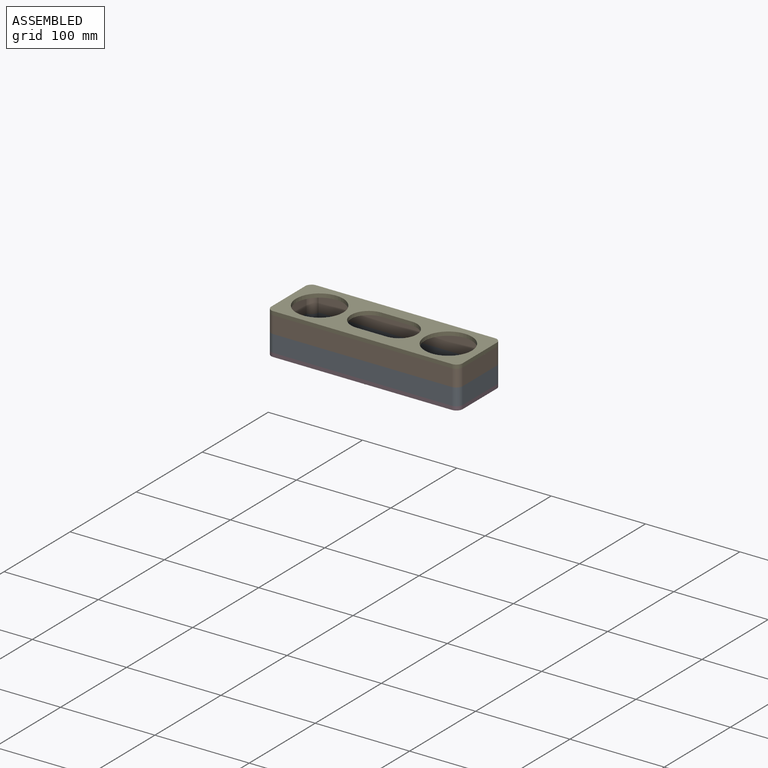
[diagram: assembled view]
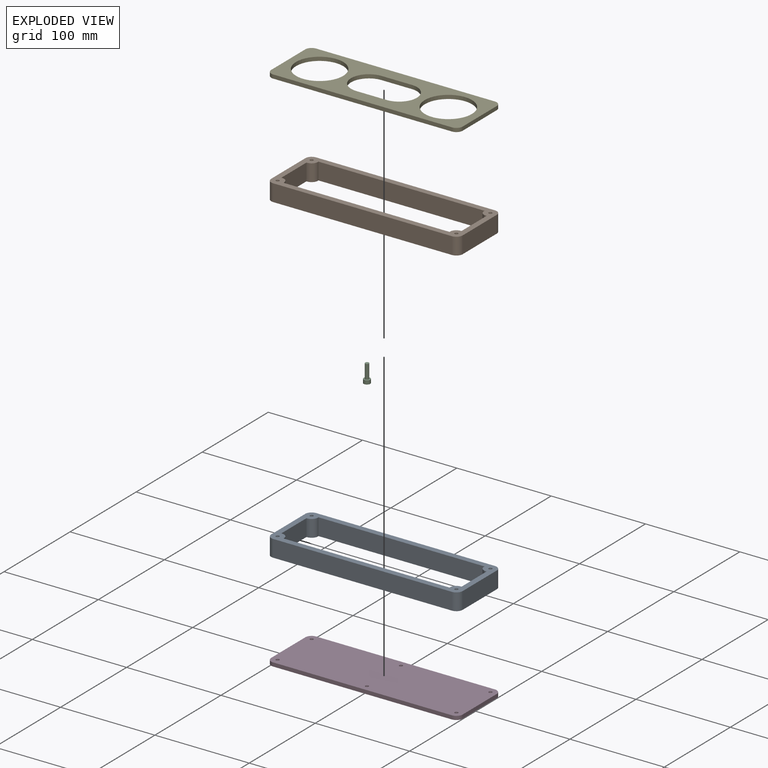
[diagram: exploded view]
GUIDED TOUR — MATED ASSEMBLY (Onshape document 22fac32ac888a9995db5bcfa, AutoMate assembly 22fac32ac888a9995db5bcfa_79e6422049f0d571013ea91f_927dd450b49214fd320469d9_default)

This assembly has 5 components, labeled P0..P4 below (a component is one placed occurrence of a part; the same part can appear more than once), held together by 4 mates. A mate is a constraint between two components; its type names the relative motion it leaves free:
  PARALLEL — keeps the two listed directions parallel.
Axis/direction vectors are unit vectors and 'through' points are millimeter coordinates, both in the assembly's world frame.

MATES
  1. PARALLEL "평행 4": P2 <-> P3, direction (0.000, 0.000, 1.000) through (2.13, -24.68, -40.24) mm
  2. PARALLEL "평행 3": P3 <-> P0, direction (0.000, 0.000, 1.000) through (-92.62, -31.43, -38.24) mm
  3. PARALLEL "평행 1": P1 <-> P4, direction (0.000, 0.000, -1.000) through (96.88, 33.57, -2.24) mm
  4. PARALLEL "평행 2": P0 <-> P1, direction (0.000, 0.000, 1.000) through (103.63, 26.82, -20.24) mm

ASSEMBLY ORDER
  1. P2 — the base component [order verified]
  2. P0 [order verified]
  3. P3 [order verified]
  4. P1 [order verified]
  5. P4 [order verified]
Order-tag legend:
  [order verified] — this step's position reverses a verified removal order: the component was checked to insert without passing through the ones already placed.

Of the 5 components, 3 carry the full construction recipe — the FeatureScript program that regenerates the part's solid from scratch; the rest are supplied as boundary geometry only.
Each toured component is shown spotlighted twice — in the assembled view, then in the exploded view, where a leader line traces a displaced component back to its assembled socket (saturated green if recipe-attached, orange if geometry-only; every other component desaturated gray) — followed by its recipe or geometry summary and the mates that hold it.
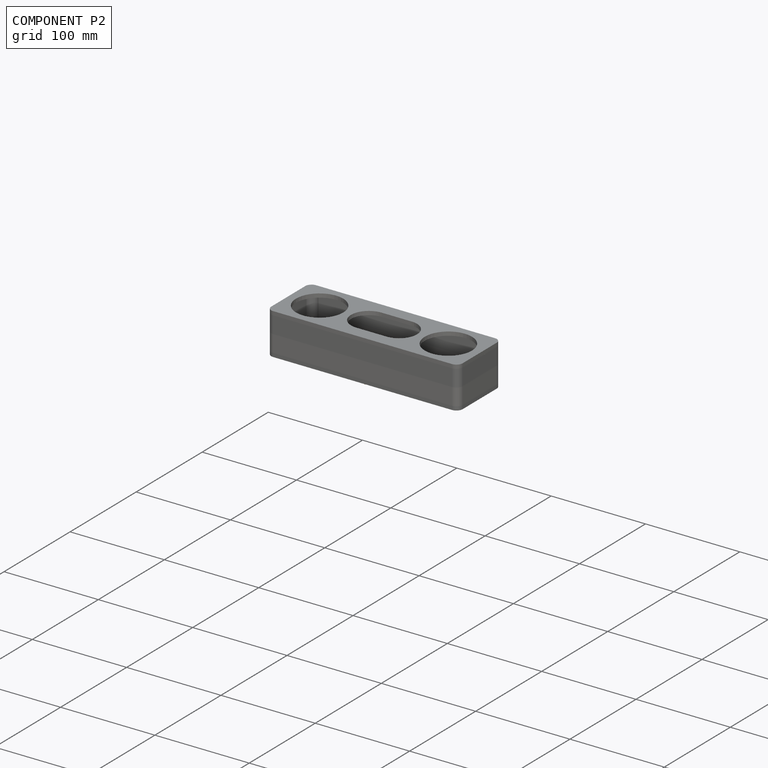
[diagram: component P2 — assembled]
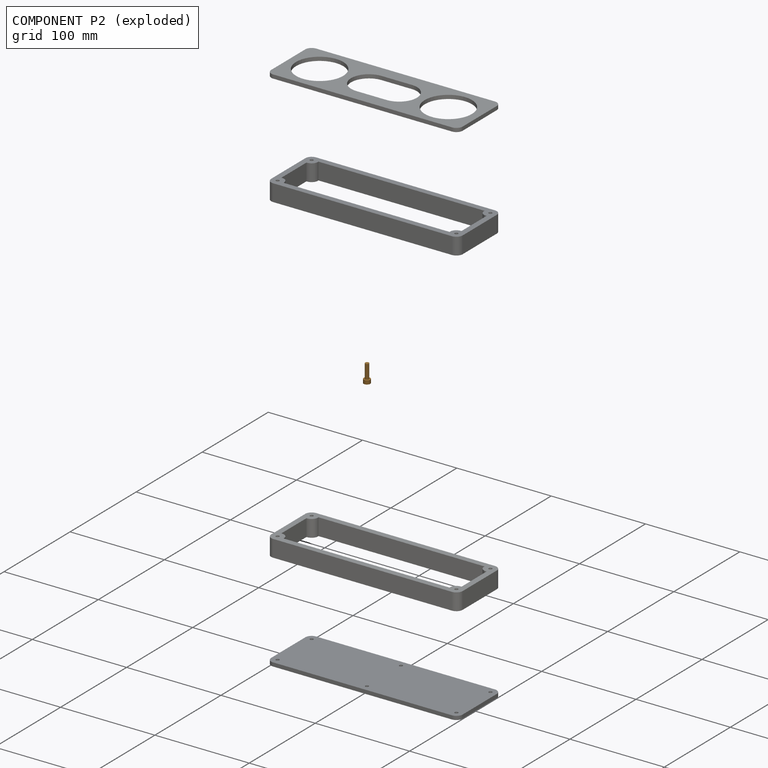
[diagram: component P2 — exploded]
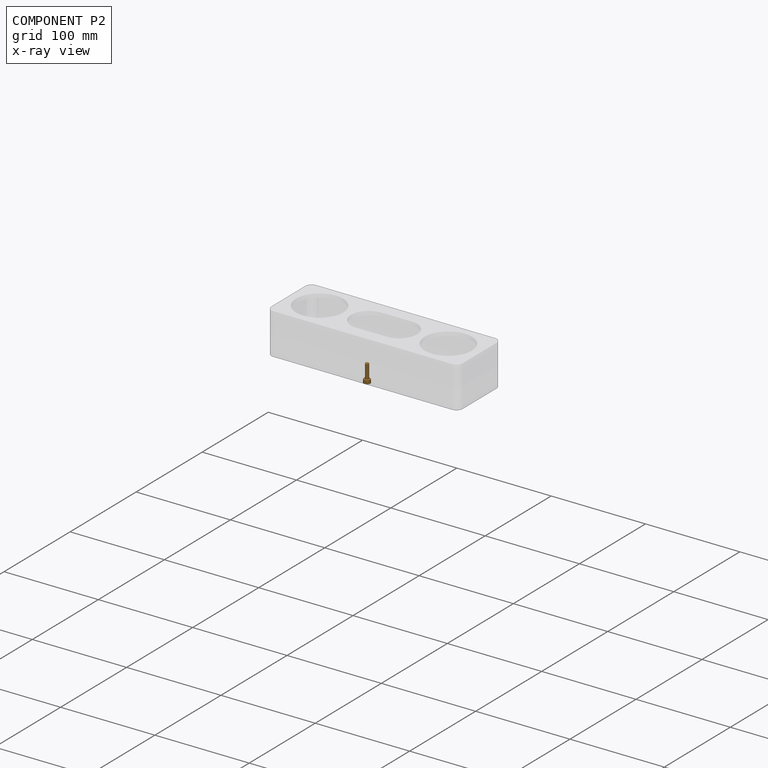
[diagram: component P2 — x-ray view]
COMPONENT P2 — geometry summary (no construction recipe available for this part):
  bounding box: 19.0 x 7.0 x 7.0 mm
  B-rep topology: 1 solid, 12 faces, 48 edges
  volume: 315 mm^3 (34% of its bounding box)
  symmetry: 6-fold rotationally symmetric about the z axis; mirror-symmetric across its x mid-plane, y mid-plane
Held by: PARALLEL mate "평행 4" to P3.
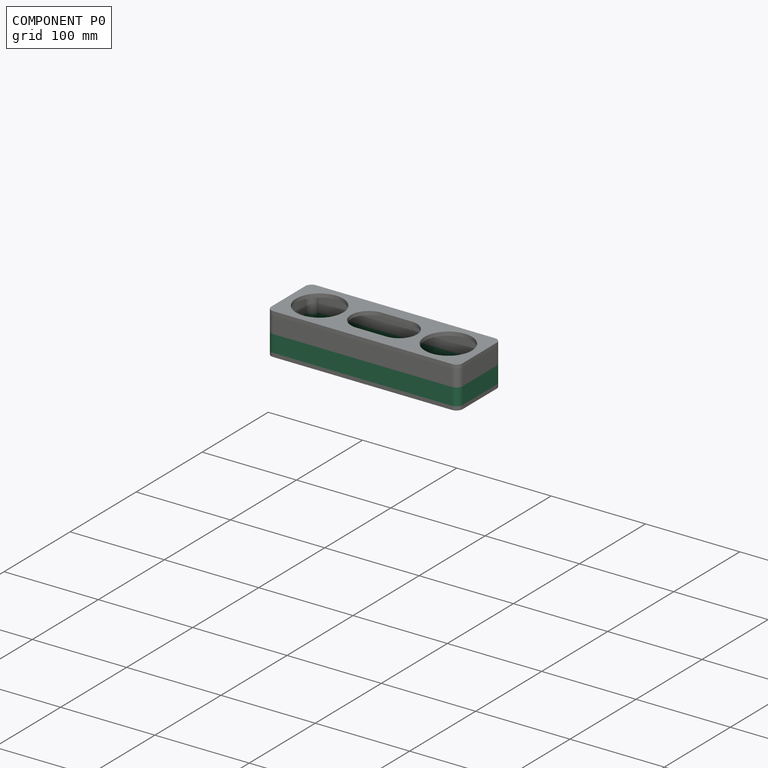
[diagram: component P0 — assembled]
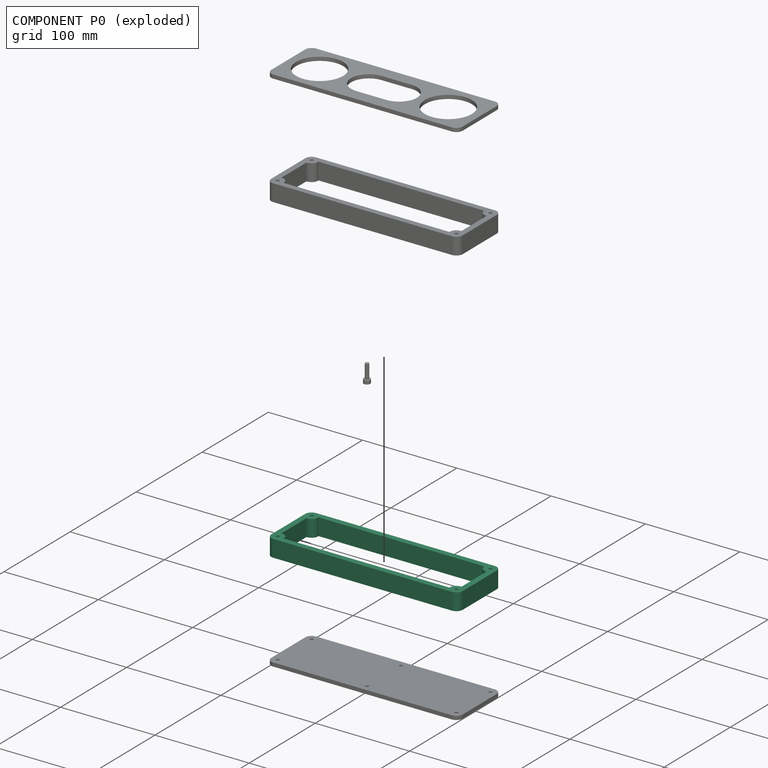
[diagram: component P0 — exploded]
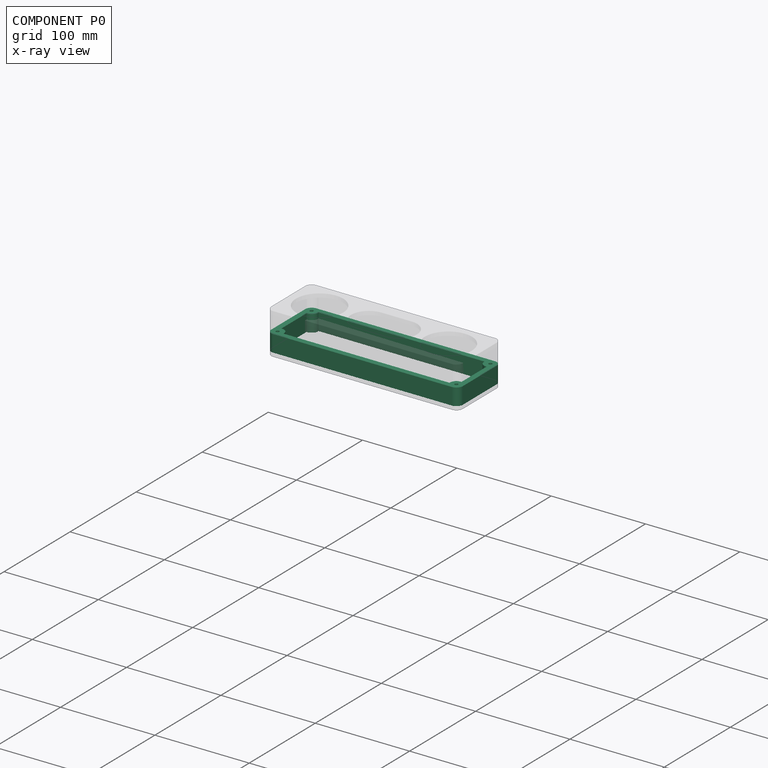
[diagram: component P0 — x-ray view]
COMPONENT P0 — recipe-attached (CADFS 00560595, mesh-verified: the recipe's output STEP matches this component's geometry to below the mesh-comparison resolution (tessellation chordal tolerance ~0.321 mm)).
Held by: PARALLEL mate "평행 3" to P3; PARALLEL mate "평행 2" to P1.
Construction recipe (FeatureScript — the CAD program that rebuilds this solid; sketch coordinates are in the units given by the * unit suffixes, e.g. mm):

FeatureScript 1511;
import(path : "onshape/std/geometry.fs", version : "1511.0");
import(path : "onshape/std/common.fs", version : "1511.0");
const mm = millimeter;
const VERTEX = EntityType.VERTEX;
const EDGE = EntityType.EDGE;
const FACE = EntityType.FACE;
const BODY = EntityType.BODY;
function v(x, y){return vector(x, y);}
function OD(order){return orderDisambiguation(order);}
function OSD(set){return originalSetDisambiguation(set);}
function TD(topology){return topologyDisambiguation(topology);}
function TDD(query){return trueDependencyDisambiguation(query);}
function sQuery(a, b, c) {return sketchEntityQuery(a, b, c);}

annotation { "Feature Type Name" : "Feature", "Feature Type Description" : "" }
export const myFeature = defineFeature(function(context is Context, id is Id, definition is map)
    precondition{}
    {
        {
            var Q0;
            Q0=qCreatedBy(makeId("Top.planeOp"),FACE);
            var sketch = newSketch(context, id + "F0", { "sketchPlane" : qUnion([Q0])});
            skLineSegment(sketch, "E0.bottom", {"start": v(94.75, -32.5) * mm, "end": v(-94.75, -32.5) * mm});
            skLineSegment(sketch, "E0.top", {"start": v(94.75, 32.5) * mm, "end": v(-94.75, 32.5) * mm});
            skLineSegment(sketch, "E0.left", {"start": v(101.5, -25.75) * mm, "end": v(101.5, 25.75) * mm});
            skLineSegment(sketch, "E0.right", {"start": v(-101.5, -25.75) * mm, "end": v(-101.5, 25.75) * mm});
            skLineSegment(sketch, "E1.0", {"start": v(88.04, 26.5) * mm, "end": v(6.7, 26.5) * mm});
            skLineSegment(sketch, "E1.2", {"start": v(88.04, -26.5) * mm, "end": v(6.7, -26.5) * mm});
            skLineSegment(sketch, "E1.3", {"start": v(-95.5, -19.04) * mm, "end": v(-95.5, 19.04) * mm});
            skArc(sketch, "E2", {"start": v(-95.5, 19.04) * mm, "mid": v(-89.98, 20.98) * mm, "end": v(-88.04, 26.5) * mm});
            skCircle(sketch, "E3", {"center": v(-94.75, 25.75) * mm, "radius": 1.75 * mm});
            skPoint(sketch, "E4.orphan", {"position": v(-101.5, 32.5) * mm});
            skArc(sketch, "E5.trimOffspring", {"start": v(-94.75, 32.5) * mm, "mid": v(-99.52, 30.52) * mm, "end": v(-101.5, 25.75) * mm});
            skArc(sketch, "E6.MirrorCS", {"start": v(94.75, 32.5) * mm, "mid": v(99.52, 30.52) * mm, "end": v(101.5, 25.75) * mm});
            skCircle(sketch, "E7.MirrorC", {"center": v(94.75, 25.75) * mm, "radius": 1.75 * mm});
            skArc(sketch, "E8.MirrorCS", {"start": v(95.5, 19.04) * mm, "mid": v(89.98, 20.98) * mm, "end": v(88.04, 26.5) * mm});
            skArc(sketch, "E9.MirrorCS", {"start": v(-94.75, -32.5) * mm, "mid": v(-99.52, -30.52) * mm, "end": v(-101.5, -25.75) * mm});
            skCircle(sketch, "E10.MirrorC", {"center": v(-94.75, -25.75) * mm, "radius": 1.75 * mm});
            skArc(sketch, "E11.MirrorCS", {"start": v(-95.5, -19.04) * mm, "mid": v(-89.98, -20.98) * mm, "end": v(-88.04, -26.5) * mm});
            skArc(sketch, "E12.MirrorCS", {"start": v(94.75, -32.5) * mm, "mid": v(99.52, -30.52) * mm, "end": v(101.5, -25.75) * mm});
            skCircle(sketch, "E13.MirrorC", {"center": v(94.75, -25.75) * mm, "radius": 1.75 * mm});
            skArc(sketch, "E14.MirrorCS", {"start": v(95.5, -19.04) * mm, "mid": v(89.98, -20.98) * mm, "end": v(88.04, -26.5) * mm});
            skPoint(sketch, "E15.orphan", {"position": v(-101.5, -32.5) * mm});
            skLineSegment(sketch, "E16.trimOffspring", {"start": v(95.5, -19.04) * mm, "end": v(95.5, 19.04) * mm});
            skPoint(sketch, "E17.orphan", {"position": v(101.5, -32.5) * mm});
            skPoint(sketch, "E18.orphan", {"position": v(101.5, 32.5) * mm});
            skLineSegment(sketch, "E19.trimOffspring", {"start": v(6.7, 26.5) * mm, "end": v(-88.04, 26.5) * mm});
            skLineSegment(sketch, "E20.trimOffspring", {"start": v(6.7, -26.5) * mm, "end": v(-88.04, -26.5) * mm});
            skSolve(sketch);
        }
        {
            var Q0;
            Q0=makeQuery(id+"F0.imprint","IMPRINT",FACE,{"disambiguationData":[TD([[makeQuery(id+"F0.imprint","IMPRINT",EDGE,{"derivedFrom":sQuery(id+"F0.wireOp",EDGE,"E0.bottom")}),-1.0]])]});
            extrude(context, id + "F1", {"entities" : qUnion([Q0]), "depth" : 18 * mm, "offsetDistance" : 25 * mm});
        }
    });
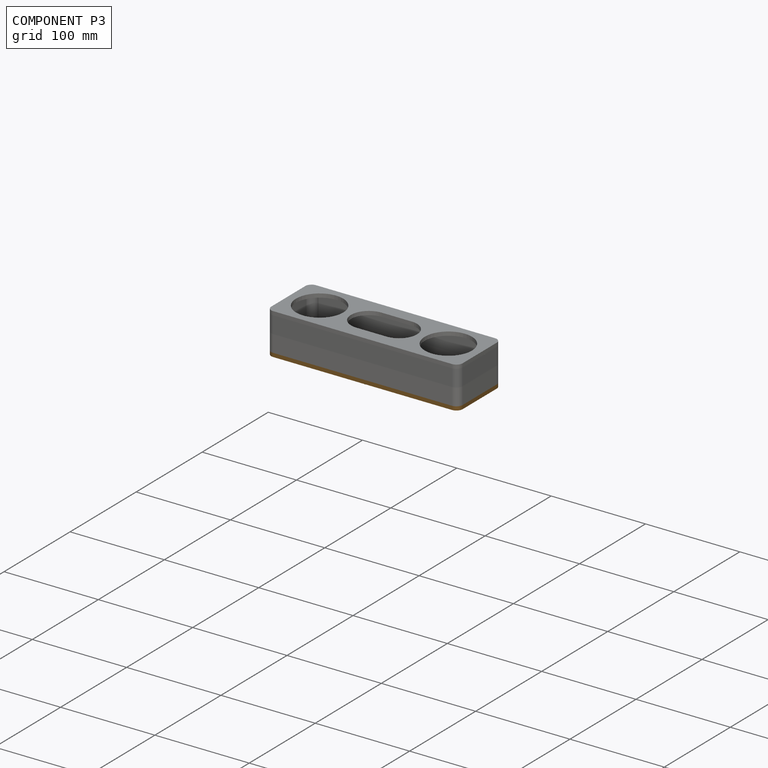
[diagram: component P3 — assembled]
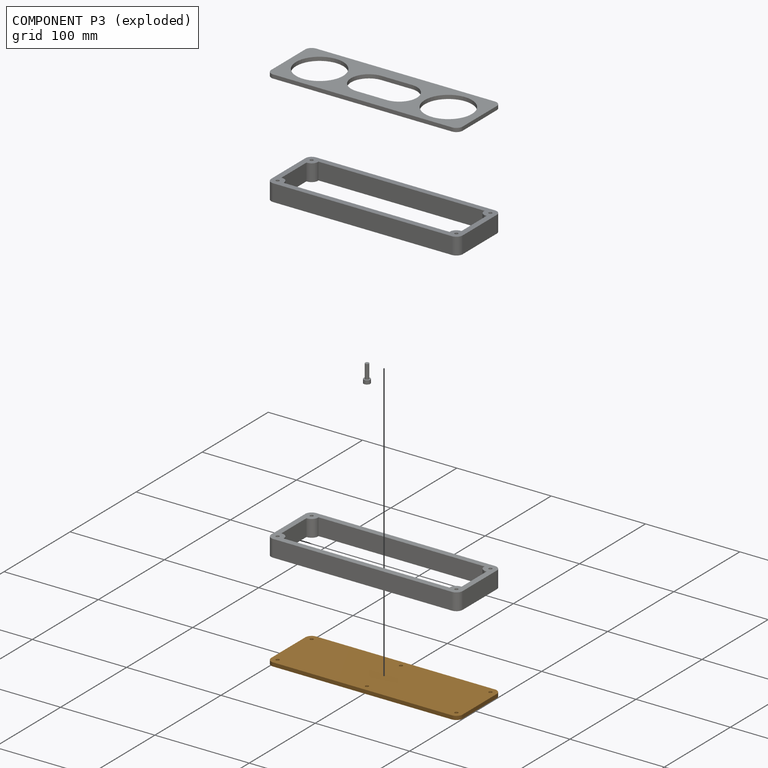
[diagram: component P3 — exploded]
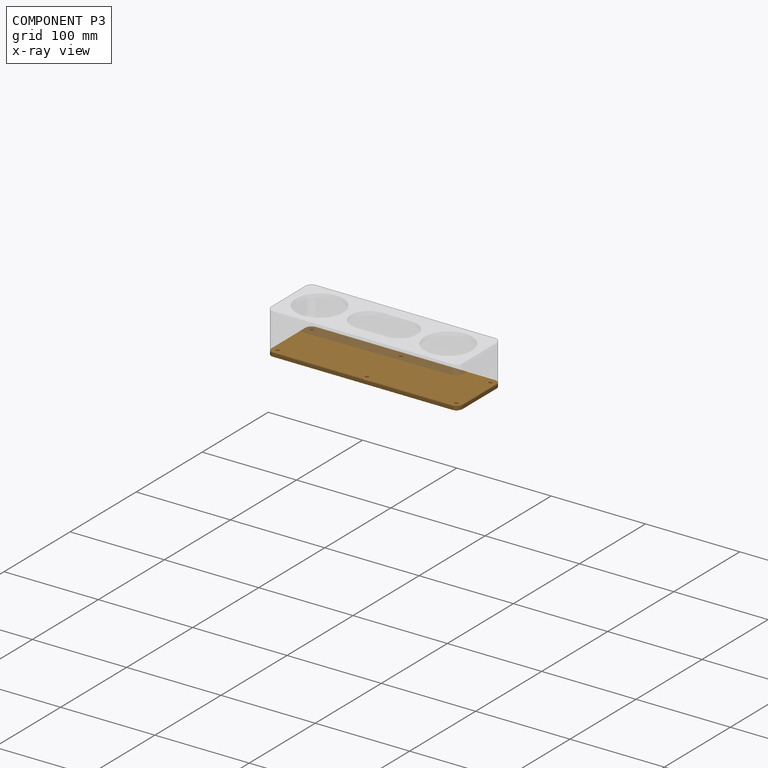
[diagram: component P3 — x-ray view]
COMPONENT P3 — geometry summary (no construction recipe available for this part):
  bounding box: 203.0 x 65.0 x 4.0 mm
  B-rep topology: 1 solid, 28 faces, 120 edges
  volume: 51978 mm^3 (98% of its bounding box)
  symmetry: 2-fold rotationally symmetric about the z axis; mirror-symmetric across its x mid-plane, y mid-plane
Held by: PARALLEL mate "평행 4" to P2; PARALLEL mate "평행 3" to P0.
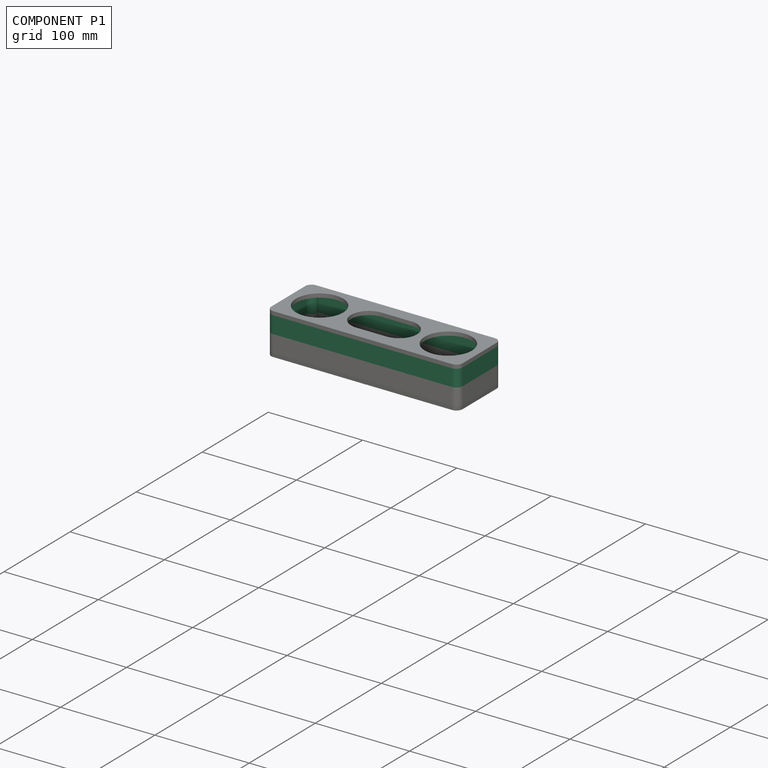
[diagram: component P1 — assembled]
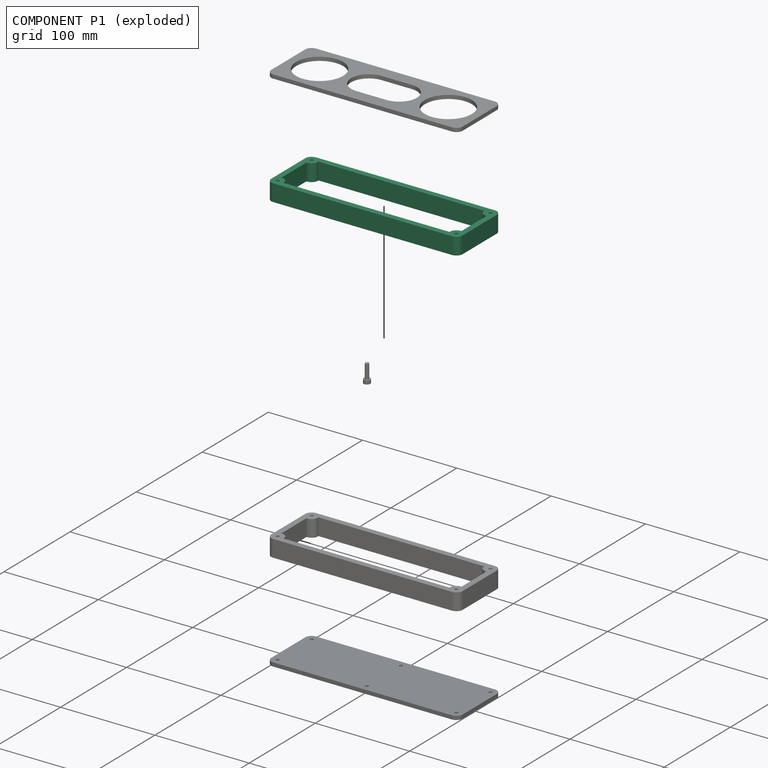
[diagram: component P1 — exploded]
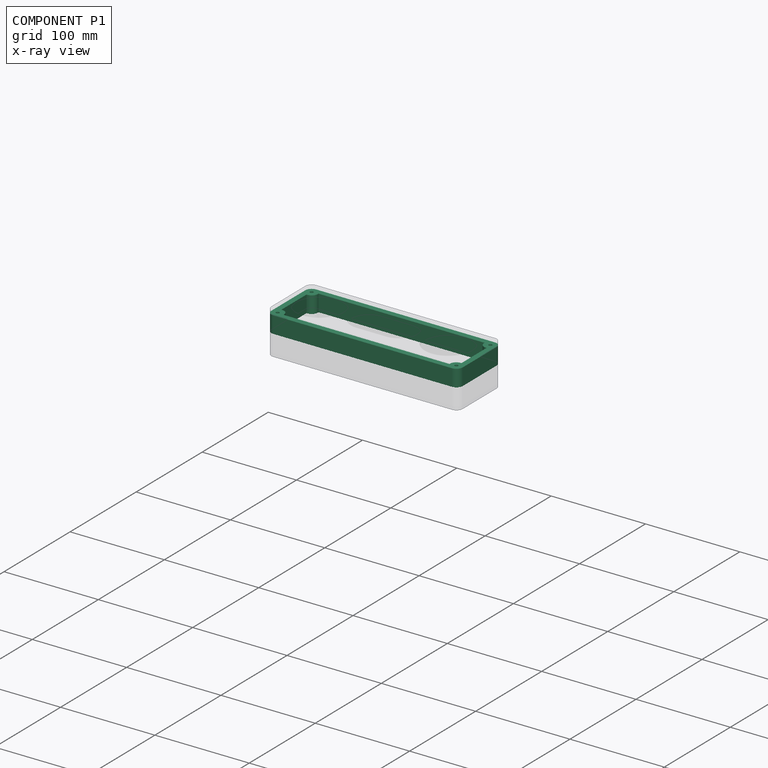
[diagram: component P1 — x-ray view]
COMPONENT P1 — same part as P0 (CADFS 00560595); its construction recipe is shown at P0.
Held by: PARALLEL mate "평행 1" to P4; PARALLEL mate "평행 2" to P0.
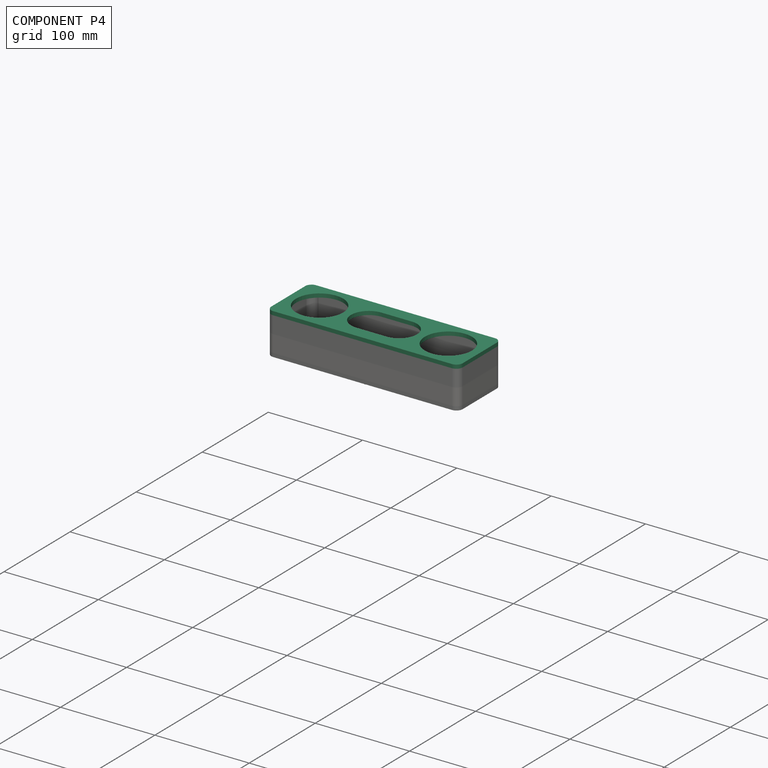
[diagram: component P4 — assembled]
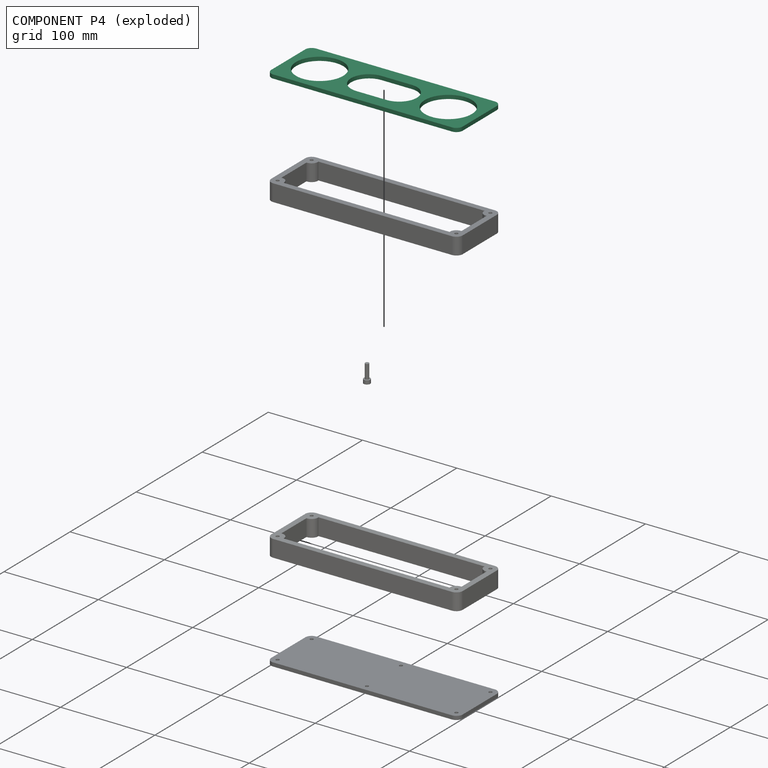
[diagram: component P4 — exploded]
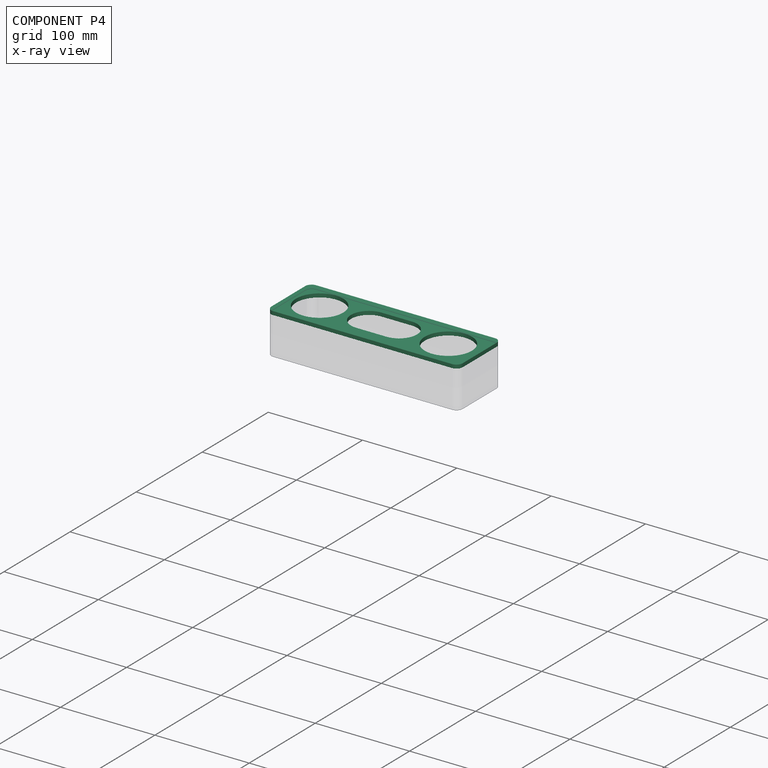
[diagram: component P4 — x-ray view]
COMPONENT P4 — recipe-attached (CADFS 00560596, mesh-verified: the recipe's output STEP matches this component's geometry to below the mesh-comparison resolution (tessellation chordal tolerance ~0.32 mm)).
Held by: PARALLEL mate "평행 1" to P1.
Construction recipe (FeatureScript — the CAD program that rebuilds this solid; sketch coordinates are in the units given by the * unit suffixes, e.g. mm):

FeatureScript 1511;
import(path : "onshape/std/geometry.fs", version : "1511.0");
import(path : "onshape/std/common.fs", version : "1511.0");
const mm = millimeter;
const VERTEX = EntityType.VERTEX;
const EDGE = EntityType.EDGE;
const FACE = EntityType.FACE;
const BODY = EntityType.BODY;
function v(x, y){return vector(x, y);}
function OD(order){return orderDisambiguation(order);}
function OSD(set){return originalSetDisambiguation(set);}
function TD(topology){return topologyDisambiguation(topology);}
function TDD(query){return trueDependencyDisambiguation(query);}
function sQuery(a, b, c) {return sketchEntityQuery(a, b, c);}

annotation { "Feature Type Name" : "Feature", "Feature Type Description" : "" }
export const myFeature = defineFeature(function(context is Context, id is Id, definition is map)
    precondition{}
    {
        {
            var Q0;
            Q0=qCreatedBy(makeId("Top.planeOp"),FACE);
            var sketch = newSketch(context, id + "F0", { "sketchPlane" : qUnion([Q0])});
            skLineSegment(sketch, "E0.bottom", {"start": v(94.75, -32.5) * mm, "end": v(-94.75, -32.5) * mm});
            skLineSegment(sketch, "E0.top", {"start": v(94.75, 32.5) * mm, "end": v(-94.75, 32.5) * mm});
            skLineSegment(sketch, "E0.left", {"start": v(101.5, -25.75) * mm, "end": v(101.5, 25.75) * mm});
            skLineSegment(sketch, "E0.right", {"start": v(-101.5, -25.75) * mm, "end": v(-101.5, 25.75) * mm});
            skPoint(sketch, "E1.orphan", {"position": v(-101.5, 32.5) * mm});
            skArc(sketch, "E2.trimOffspring", {"start": v(-94.75, 32.5) * mm, "mid": v(-99.52, 30.52) * mm, "end": v(-101.5, 25.75) * mm});
            skArc(sketch, "E3.MirrorCS", {"start": v(94.75, 32.5) * mm, "mid": v(99.52, 30.52) * mm, "end": v(101.5, 25.75) * mm});
            skArc(sketch, "E4.MirrorCS", {"start": v(-94.75, -32.5) * mm, "mid": v(-99.52, -30.52) * mm, "end": v(-101.5, -25.75) * mm});
            skArc(sketch, "E5.MirrorCS", {"start": v(94.75, -32.5) * mm, "mid": v(99.52, -30.52) * mm, "end": v(101.5, -25.75) * mm});
            skPoint(sketch, "E6.orphan", {"position": v(-101.5, -32.5) * mm});
            skPoint(sketch, "E7.orphan", {"position": v(101.5, -32.5) * mm});
            skPoint(sketch, "E8.orphan", {"position": v(101.5, 32.5) * mm});
            skLineSegment(sketch, "E9.bottom", {"start": v(16, -19) * mm, "end": v(-16, -19) * mm});
            skLineSegment(sketch, "E9.top", {"start": v(16, 19) * mm, "end": v(-16, 19) * mm});
            skLineSegment(sketch, "E9.left", {"start": v(16, -19) * mm, "end": v(16, 19) * mm});
            skLineSegment(sketch, "E9.right", {"start": v(-16, -19) * mm, "end": v(-16, 19) * mm});
            skPoint(sketch, "E9.middle", {"position": v(0, 0) * mm});
            skArc(sketch, "E10", {"start": v(-16, 19) * mm, "mid": v(-35, 0) * mm, "end": v(-16, -19) * mm});
            skArc(sketch, "E11", {"start": v(16, 19) * mm, "mid": v(35, 0) * mm, "end": v(16, -19) * mm});
            skCircle(sketch, "E12", {"center": v(-68.25, 0) * mm, "radius": 25 * mm});
            skLineSegment(sketch, "E13", {"start": v(0, 0) * mm, "end": v(0, 12.3) * mm, "construction": true});
            skCircle(sketch, "E14.MirrorC", {"center": v(68.25, 0) * mm, "radius": 25 * mm});
            skSolve(sketch);
        }
        {
            var Q0;
            Q0 = qSketchRegion(id + "F0", true);
            extrude(context, id + "F1", {"entities" : qUnion([Q0]), "depth" : 4 * mm, "offsetDistance" : 25 * mm});
        }
    });
PROVENANCE & LICENSES
Assembly (occurrences, transforms, mates, per-part STEP geometry): AutoMate dataset, Zenodo record 7776208, CC0.
Construction recipes: CADFS (HuggingFace VladPyatov/CADFS, CC-BY-4.0, layered over the ABC dataset), FeatureScript reconstruction programs keyed by ABC model id.
Join: ABC meta listings map ABC model id -> Onshape documentId; within a shared document, parts are matched by geometric signature (bounding-box dims + volume at 0.1% relative tolerance, exact B-rep face/solid counts).
Verification: 3 of this assembly's 5 components carry a recipe attachment, and every attachment is mesh-verified: the CADFS STEP and the AutoMate member STEP were compared as meshes in their shared local frame (symmetric sampled-point-to-mesh distance); worst across the 3 attachments: below the mesh-comparison resolution (tessellation chordal tolerance ~0.321 mm) on a 214 mm part.
Renders: orthographic iso camera (az 35 / el 25); the floor grid conveys scale (grid pitch printed in each image; no ruler). In the exploded view each component is displaced by its stored offset vector: the offsets alone carry the explosion direction (mate normal/axis signs are not orientation cues and do not encode it), and separation distances are assigned per mate-chain, not proportionally to assembly-order depth.
